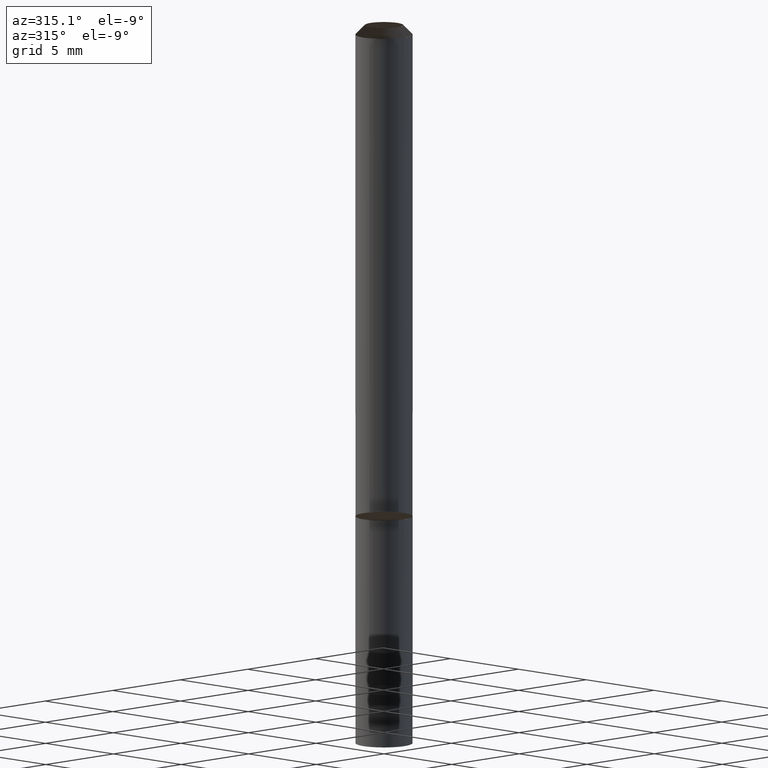
[diagram: clean part render]
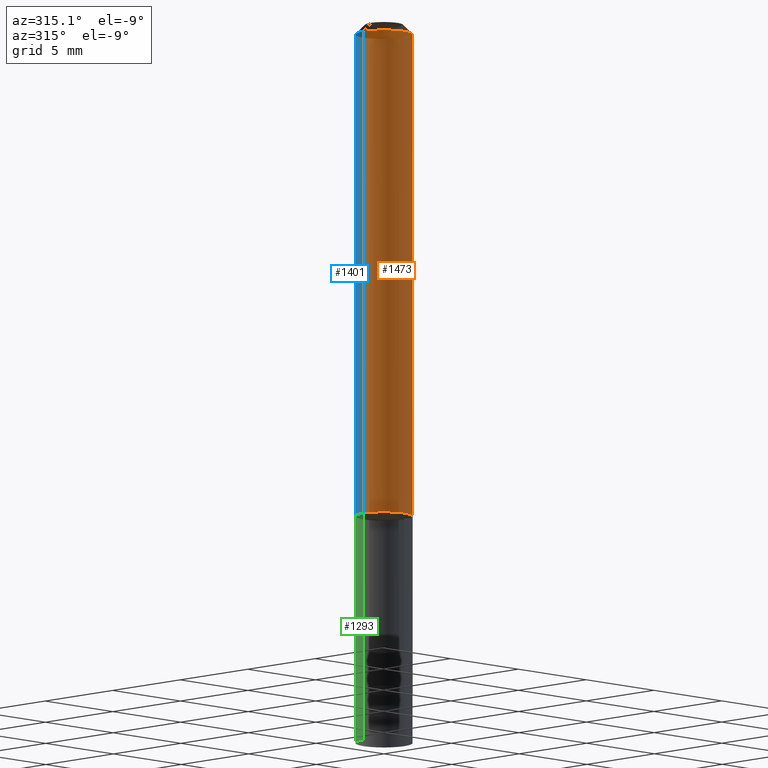
[diagram: same view with three faces highlighted in distinct colors, each labeled with its STEP entity id]
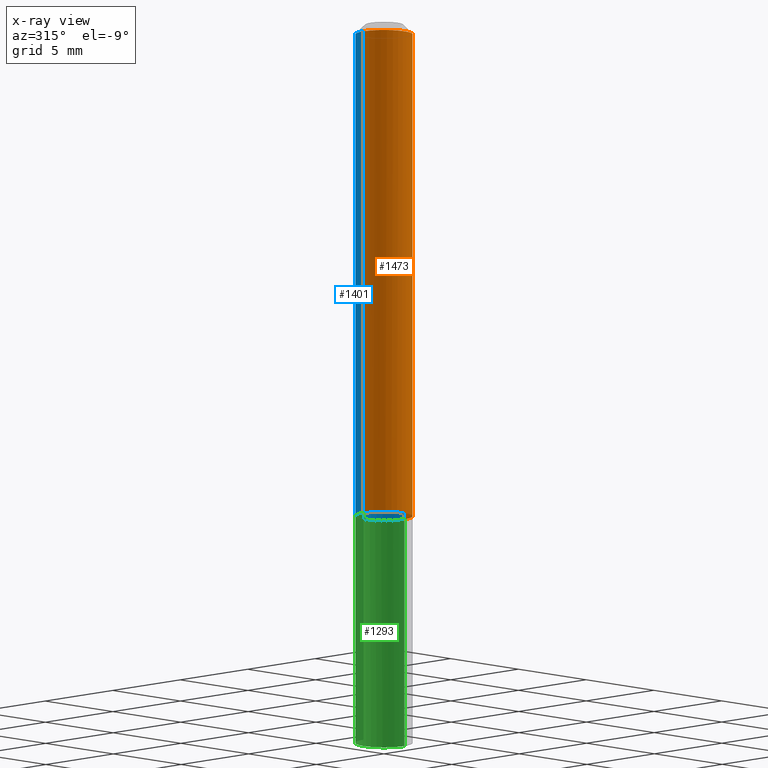
[diagram: x-ray of the same camera — body ghosted, the three highlighted faces saturated]
A machine part, auxiliary view with three faces highlighted in distinct colors.
The next image is the same camera in x-ray (body ghosted, the three faces saturated) — at least one of them is partly hidden behind the body in this view.
Their STEP definitions:

[orange] entity #1473 — the highlighted face is a freeform B-spline surface patch.
#1223=CARTESIAN_POINT('',(1.5,0.0,0.0));
#1227=CARTESIAN_POINT('',(-1.5,0.0,0.0));
#1231=CARTESIAN_POINT('',(-1.5,-1.5,0.0));
#1232=CARTESIAN_POINT('',(0.0,-1.5,0.0));
#1233=CARTESIAN_POINT('',(1.5,-1.5,0.0));
#1234=CARTESIAN_POINT('',(1.5,0.0,25.5));
#1238=CARTESIAN_POINT('',(-1.5,0.0,25.5));
#1245=CARTESIAN_POINT('',(-1.5,-1.5,25.5));
#1246=CARTESIAN_POINT('',(0.0,-1.5,25.5));
#1247=CARTESIAN_POINT('',(1.5,-1.5,25.5));
#1454=(
BOUNDED_SURFACE()
B_SPLINE_SURFACE(1,2,(
(#1227,#1231,#1232,#1233,#1223),
(#1238,#1245,#1246,#1247,#1234)
), .UNSPECIFIED.,.F.,.F.,.F.)
B_SPLINE_SURFACE_WITH_KNOTS((2,2),(3,2,3),(
0.0,1.0),(
0.0,0.5,1.0), .UNSPECIFIED.)
GEOMETRIC_REPRESENTATION_ITEM()
RATIONAL_B_SPLINE_SURFACE(((1.0,0.707106781187,1.0,0.707106781187,1.0),
(1.0,0.707106781187,1.0,0.707106781187,1.0)
))
REPRESENTATION_ITEM('')
SURFACE()
);
#1455=(
BOUNDED_CURVE()
B_SPLINE_CURVE(2,(#1223,#1233,#1232,#1231,#1227),.UNSPECIFIED.,.F.,.F.)
B_SPLINE_CURVE_WITH_KNOTS((3,2,3),
(0.0,0.5,1.0),.UNSPECIFIED.)
CURVE()
GEOMETRIC_REPRESENTATION_ITEM()
RATIONAL_B_SPLINE_CURVE((1.0,0.707106781187,1.0,0.707106781187,1.0))
REPRESENTATION_ITEM('')
);
#1456=(
BOUNDED_CURVE()
B_SPLINE_CURVE(1,(#1227,#1238),.UNSPECIFIED.,.F.,.F.)
B_SPLINE_CURVE_WITH_KNOTS((2,2),
(0.0,1.0),.UNSPECIFIED.)
CURVE()
GEOMETRIC_REPRESENTATION_ITEM()
RATIONAL_B_SPLINE_CURVE((1.0,1.0))
REPRESENTATION_ITEM('')
);
#1457=(
BOUNDED_CURVE()
B_SPLINE_CURVE(2,(#1238,#1245,#1246,#1247,#1234),.UNSPECIFIED.,.F.,.F.)
B_SPLINE_CURVE_WITH_KNOTS((3,2,3),
(0.0,0.5,1.0),.UNSPECIFIED.)
CURVE()
GEOMETRIC_REPRESENTATION_ITEM()
RATIONAL_B_SPLINE_CURVE((1.0,0.707106781187,1.0,0.707106781187,1.0))
REPRESENTATION_ITEM('')
);
#1458=(
BOUNDED_CURVE()
B_SPLINE_CURVE(1,(#1234,#1223),.UNSPECIFIED.,.F.,.F.)
B_SPLINE_CURVE_WITH_KNOTS((2,2),
(0.0,1.0),.UNSPECIFIED.)
CURVE()
GEOMETRIC_REPRESENTATION_ITEM()
RATIONAL_B_SPLINE_CURVE((1.0,1.0))
REPRESENTATION_ITEM('')
);
#1459=VERTEX_POINT('',#1223);
#1460=VERTEX_POINT('',#1227);
#1461=VERTEX_POINT('',#1234);
#1462=VERTEX_POINT('',#1238);
#1463=EDGE_CURVE('',#1459,#1460,#1455,.T.);
#1464=EDGE_CURVE('',#1460,#1462,#1456,.T.);
#1465=EDGE_CURVE('',#1462,#1461,#1457,.T.);
#1466=EDGE_CURVE('',#1461,#1459,#1458,.T.);
#1467=ORIENTED_EDGE('',*,*,#1463,.T.);
#1468=ORIENTED_EDGE('',*,*,#1464,.T.);
#1469=ORIENTED_EDGE('',*,*,#1465,.T.);
#1470=ORIENTED_EDGE('',*,*,#1466,.T.);
#1471=EDGE_LOOP('',(#1467,#1468,#1469,#1470));
#1472=FACE_OUTER_BOUND('',#1471,.T.);
#1473=ADVANCED_FACE('',(#1472),#1454,.T.);

[blue] entity #1401 — the highlighted face is a freeform B-spline surface patch.
#1223=CARTESIAN_POINT('',(1.5,0.0,0.0));
#1224=CARTESIAN_POINT('',(1.5,1.5,0.0));
#1225=CARTESIAN_POINT('',(0.0,1.5,0.0));
#1226=CARTESIAN_POINT('',(-1.5,1.5,0.0));
#1227=CARTESIAN_POINT('',(-1.5,0.0,0.0));
#1234=CARTESIAN_POINT('',(1.5,0.0,25.5));
#1235=CARTESIAN_POINT('',(1.5,1.5,25.5));
#1236=CARTESIAN_POINT('',(0.0,1.5,25.5));
#1237=CARTESIAN_POINT('',(-1.5,1.5,25.5));
#1238=CARTESIAN_POINT('',(-1.5,0.0,25.5));
#1382=(
BOUNDED_SURFACE()
B_SPLINE_SURFACE(1,2,(
(#1223,#1224,#1225,#1226,#1227),
(#1234,#1235,#1236,#1237,#1238)
), .UNSPECIFIED.,.F.,.F.,.F.)
B_SPLINE_SURFACE_WITH_KNOTS((2,2),(3,2,3),(
0.0,1.0),(
0.0,0.5,1.0), .UNSPECIFIED.)
GEOMETRIC_REPRESENTATION_ITEM()
RATIONAL_B_SPLINE_SURFACE(((1.0,0.707106781187,1.0,0.707106781187,1.0),
(1.0,0.707106781187,1.0,0.707106781187,1.0)
))
REPRESENTATION_ITEM('')
SURFACE()
);
#1383=(
BOUNDED_CURVE()
B_SPLINE_CURVE(2,(#1227,#1226,#1225,#1224,#1223),.UNSPECIFIED.,.F.,.F.)
B_SPLINE_CURVE_WITH_KNOTS((3,2,3),
(0.0,0.5,1.0),.UNSPECIFIED.)
CURVE()
GEOMETRIC_REPRESENTATION_ITEM()
RATIONAL_B_SPLINE_CURVE((1.0,0.707106781187,1.0,0.707106781187,1.0))
REPRESENTATION_ITEM('')
);
#1384=(
BOUNDED_CURVE()
B_SPLINE_CURVE(1,(#1223,#1234),.UNSPECIFIED.,.F.,.F.)
B_SPLINE_CURVE_WITH_KNOTS((2,2),
(0.0,1.0),.UNSPECIFIED.)
CURVE()
GEOMETRIC_REPRESENTATION_ITEM()
RATIONAL_B_SPLINE_CURVE((1.0,1.0))
REPRESENTATION_ITEM('')
);
#1385=(
BOUNDED_CURVE()
B_SPLINE_CURVE(2,(#1234,#1235,#1236,#1237,#1238),.UNSPECIFIED.,.F.,.F.)
B_SPLINE_CURVE_WITH_KNOTS((3,2,3),
(0.0,0.5,1.0),.UNSPECIFIED.)
CURVE()
GEOMETRIC_REPRESENTATION_ITEM()
RATIONAL_B_SPLINE_CURVE((1.0,0.707106781187,1.0,0.707106781187,1.0))
REPRESENTATION_ITEM('')
);
#1386=(
BOUNDED_CURVE()
B_SPLINE_CURVE(1,(#1238,#1227),.UNSPECIFIED.,.F.,.F.)
B_SPLINE_CURVE_WITH_KNOTS((2,2),
(0.0,1.0),.UNSPECIFIED.)
CURVE()
GEOMETRIC_REPRESENTATION_ITEM()
RATIONAL_B_SPLINE_CURVE((1.0,1.0))
REPRESENTATION_ITEM('')
);
#1387=VERTEX_POINT('',#1223);
#1388=VERTEX_POINT('',#1227);
#1389=VERTEX_POINT('',#1234);
#1390=VERTEX_POINT('',#1238);
#1391=EDGE_CURVE('',#1388,#1387,#1383,.T.);
#1392=EDGE_CURVE('',#1387,#1389,#1384,.T.);
#1393=EDGE_CURVE('',#1389,#1390,#1385,.T.);
#1394=EDGE_CURVE('',#1390,#1388,#1386,.T.);
#1395=ORIENTED_EDGE('',*,*,#1391,.T.);
#1396=ORIENTED_EDGE('',*,*,#1392,.T.);
#1397=ORIENTED_EDGE('',*,*,#1393,.T.);
#1398=ORIENTED_EDGE('',*,*,#1394,.T.);
#1399=EDGE_LOOP('',(#1395,#1396,#1397,#1398));
#1400=FACE_OUTER_BOUND('',#1399,.T.);
#1401=ADVANCED_FACE('',(#1400),#1382,.T.);

[green] entity #1293 — the highlighted face is a freeform B-spline surface patch.
#396=CARTESIAN_POINT('',(1.5,0.0,-12.0));
#687=CARTESIAN_POINT('',(0.0,1.5,-12.0));
#978=CARTESIAN_POINT('',(-1.5,0.0,-12.0));
#1221=CARTESIAN_POINT('',(1.5,1.5,-12.0));
#1222=CARTESIAN_POINT('',(-1.5,1.5,-12.0));
#1223=CARTESIAN_POINT('',(1.5,0.0,0.0));
#1224=CARTESIAN_POINT('',(1.5,1.5,0.0));
#1225=CARTESIAN_POINT('',(0.0,1.5,0.0));
#1226=CARTESIAN_POINT('',(-1.5,1.5,0.0));
#1227=CARTESIAN_POINT('',(-1.5,0.0,0.0));
#1274=(
BOUNDED_SURFACE()
B_SPLINE_SURFACE(1,2,(
(#396,#1221,#687,#1222,#978),
(#1223,#1224,#1225,#1226,#1227)
), .UNSPECIFIED.,.F.,.F.,.F.)
B_SPLINE_SURFACE_WITH_KNOTS((2,2),(3,2,3),(
0.0,1.0),(
0.0,0.5,1.0), .UNSPECIFIED.)
GEOMETRIC_REPRESENTATION_ITEM()
RATIONAL_B_SPLINE_SURFACE(((1.0,0.707106781187,1.0,0.707106781187,1.0),
(1.0,0.707106781187,1.0,0.707106781187,1.0)
))
REPRESENTATION_ITEM('')
SURFACE()
);
#1275=(
BOUNDED_CURVE()
B_SPLINE_CURVE(2,(#978,#1222,#687,#1221,#396),.UNSPECIFIED.,.F.,.F.)
B_SPLINE_CURVE_WITH_KNOTS((3,2,3),
(0.0,0.5,1.0),.UNSPECIFIED.)
CURVE()
GEOMETRIC_REPRESENTATION_ITEM()
RATIONAL_B_SPLINE_CURVE((1.0,0.707106781187,1.0,0.707106781187,1.0))
REPRESENTATION_ITEM('')
);
#1276=(
BOUNDED_CURVE()
B_SPLINE_CURVE(1,(#396,#1223),.UNSPECIFIED.,.F.,.F.)
B_SPLINE_CURVE_WITH_KNOTS((2,2),
(0.0,1.0),.UNSPECIFIED.)
CURVE()
GEOMETRIC_REPRESENTATION_ITEM()
RATIONAL_B_SPLINE_CURVE((1.0,1.0))
REPRESENTATION_ITEM('')
);
#1277=(
BOUNDED_CURVE()
B_SPLINE_CURVE(2,(#1223,#1224,#1225,#1226,#1227),.UNSPECIFIED.,.F.,.F.)
B_SPLINE_CURVE_WITH_KNOTS((3,2,3),
(0.0,0.5,1.0),.UNSPECIFIED.)
CURVE()
GEOMETRIC_REPRESENTATION_ITEM()
RATIONAL_B_SPLINE_CURVE((1.0,0.707106781187,1.0,0.707106781187,1.0))
REPRESENTATION_ITEM('')
);
#1278=(
BOUNDED_CURVE()
B_SPLINE_CURVE(1,(#1227,#978),.UNSPECIFIED.,.F.,.F.)
B_SPLINE_CURVE_WITH_KNOTS((2,2),
(0.0,1.0),.UNSPECIFIED.)
CURVE()
GEOMETRIC_REPRESENTATION_ITEM()
RATIONAL_B_SPLINE_CURVE((1.0,1.0))
REPRESENTATION_ITEM('')
);
#1279=VERTEX_POINT('',#396);
#1280=VERTEX_POINT('',#978);
#1281=VERTEX_POINT('',#1223);
#1282=VERTEX_POINT('',#1227);
#1283=EDGE_CURVE('',#1280,#1279,#1275,.T.);
#1284=EDGE_CURVE('',#1279,#1281,#1276,.T.);
#1285=EDGE_CURVE('',#1281,#1282,#1277,.T.);
#1286=EDGE_CURVE('',#1282,#1280,#1278,.T.);
#1287=ORIENTED_EDGE('',*,*,#1283,.T.);
#1288=ORIENTED_EDGE('',*,*,#1284,.T.);
#1289=ORIENTED_EDGE('',*,*,#1285,.T.);
#1290=ORIENTED_EDGE('',*,*,#1286,.T.);
#1291=EDGE_LOOP('',(#1287,#1288,#1289,#1290));
#1292=FACE_OUTER_BOUND('',#1291,.T.);
#1293=ADVANCED_FACE('',(#1292),#1274,.T.);